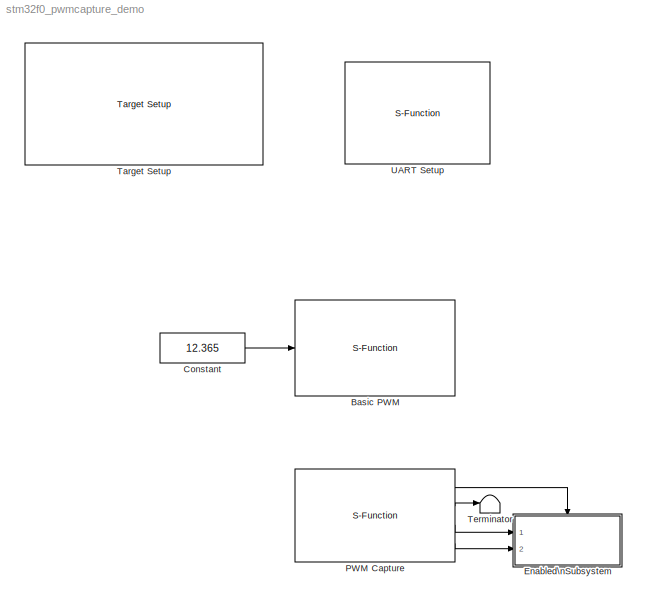
MODEL stm32f0_pwmcapture_demo
KIND model
CONFIG PreLoadFcn = waijung.modelPreload; % Required for working with Waijung Blockset. Do not remove.
BLOCK [S-Function] Basic PWM
  EnableBusSupport = off
  FunctionName = stm32f0_tim
  MaskCallbackString = stm32f0_tim_callback('conf');|stm32f0_tim_callback('timer');|||||||stm32f0_tim_callback('sampletime');|stm32f0_tim_callback('enablecustomportlabel');|stm32f0_tim_callback('conf');|stm32f0_tim_callback('conf');||stm32f0_tim_callback('blockid');||||||||
  MaskDisplay = text(0.95, 0.5, 'Timer: 16\\nPolarity: Active High\\nPeriod (sec): 0.02\\nTs (sec): 0.1','ver','middle','hor','right'); port_label('input', 1,'CH1(A6)');
  MaskEnableString = on,on,on,on,on,off,off,off,on,on,on,on,on,off,on,on,on,on,on,on,on,on
  MaskHelp = web(fullfile(waijungdocroot,'stm32f0_tim.htm'), '-browser')
  MaskIconFrame = on
  MaskIconOpaque = on
  MaskIconRotate = none
  MaskIconUnits = normalized
  MaskInitialization = stm32f0_tim_callback('init');
  MaskPortRotate = default
  MaskPromptString = Configuration|Timer|PWM Period (seconds)|Polarity|Channel 1|Channel 2|Channel 3|Channel 4|Sample time (sec)|Enable custom port labels (Ex. In1, In2, In3)|Custom input port labels (Ex. In1, In2, In3)|Custom output port labels (Ex. Out1, Out2, Out3)|Port Pin String|Block ID|Input Port Type|Input Port Width|Input Port Label|Output Port Type|Output Port Width|Output port label|Compatibility (Reserved ...<+45ch>
  MaskSelfModifiable = on
  MaskStyleString = popup(pwm),popup(1|2|3|14|15|16|17),edit,popup(Active High|Active Low),popup(Not available - Do not use|A6|B8),popup(Not available - Do not use),popup(Not available - Do not use),popup(Not available - Do not use),edit,checkbox,edit,edit,edit,edit,edit,edit,edit,edit,edit,edit,edit,edit
  MaskTabNameString = ,,,,,,,,,,,,,,,,,,,,,
  MaskToolTipString = on,on,on,on,on,on,on,on,on,on,on,on,on,on,on,on,on,on,on,on,on,on
  MaskTunableValueString = off,off,off,on,off,off,off,off,off,off,off,off,off,off,off,off,off,off,off,off,off,off
  MaskType = stm32f0_tim
  MaskValueString = pwm|16|0.02|Active High|A6|Not available - Do not use|Not available - Do not use|Not available - Do not use|inf|off|Motor1,Motor2||0|BasicPWM|[-1]|[]|{'CH1(A6)'}|[]|[]|{}|0|[\"16\",\"2\",\"0.02\",\"Active High\",\"1\",\"0\",\"0\",\"0\",\"A\",\"\",\"\",\"\",\"6\",\"\",\"\",\"\",\"5\",\"0\",\"0\",\"0\",\"1\",\"0\",\"0\",\"0\",\"0\",\"63999\",\"14\",\"TIM_OCPolarity_High\"]
  MaskVarAliasString = ,,,,,,,,,,,,,,,,,,,,,
  MaskVariables = conf=&1;timer=&2;period=&3;polarity=@4;ch1pin=&5;ch2pin=&6;ch3pin=&7;ch4pin=&8;sampletime=@9;enablecustomportlabel=@10;cinputportlabel=&11;coutputportlabel=&12;portpinstr=&13;blockid=&14;inputporttype=@15;inputportwidth=@16;inputportlabel=&17;outputporttype=@18;outputportwidth=@19;outputportlabel=&20;compat=&21;optionstring=&22;
  MaskVisibilityString = off,on,on,on,on,on,on,on,on,on,off,off,off,off,off,off,off,off,off,off,off,off
  Parameters = conf,inputporttype,inputportwidth,outputporttype,outputportwidth,optionstring,sampletime,blockid
  Ports = [1]
BLOCK [Constant] Constant
  OutDataType = fixdt(1, 16)
  OutScaling = 2^0
  Value = 12.365
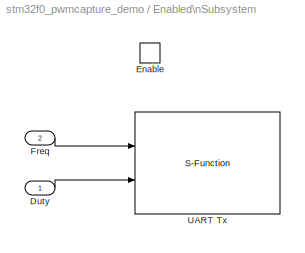
BLOCK [SubSystem] Enabled\nSubsystem
  FunctionWithSeparateData = off
  MaskHideContents = off
  MinAlgLoopOccurrences = off
  Opaque = off
  Ports = [2, 0, 1]
  PropExecContextOutsideSubsystem = off
  RTWSystemCode = Auto
  RequestExecContextInheritance = off
  TreatAsAtomicUnit = on
BLOCK [Inport] Enabled\nSubsystem/Duty
  IconDisplay = Port number
  OutDataType = fixdt(1, 16)
  OutScaling = 2^0
BLOCK [EnablePort] Enabled\nSubsystem/Enable
  Ports = []
BLOCK [Inport] Enabled\nSubsystem/Freq
  IconDisplay = Port number
  OutDataType = fixdt(1, 16)
  OutScaling = 2^0
  Port = 2
BLOCK [S-Function] Enabled\nSubsystem/UART Tx
  EnableBusSupport = off
  FunctionName = stm32f0_uart
  MaskCallbackString = stm32f0_uart_callback('conf');|stm32f0_uart_callback('uartmodule');|||||||stm32f0_uart_callback('flowcontrol');|||stm32f0_uart_callback('advanceoptions');|||stm32f0_uart_callback('conf');|stm32f0_uart_callback('conf');|stm32f0_uart_callback('binheader');|stm32f0_uart_callback('binterminator');|||||||||stm32f0_uart_callback('asciiformat');|||stm32f0_uart_callback('storagename');|||stm32f0_uart_call...<+176ch>
  MaskDescription = UART Module\n - Select module corresponding to \"UART Setup\" block.\nTransfer\n - Blocking: after write DMA buffer, the block wait until buffer empty.\n - Non-Blocking: the block will not wait for buffer empty.\nPacket mode:\n - Ascii: sending data is ascii, Ascii format + End of packet.\n - Binary: sending data is binary format, Header + Data + Terminator\n - String Buffer: Volatile Data Storage...<+256ch>
  MaskDisplay = text(0.95, 0.5, 'Module: USART1_Tx\\nPacket: Ascii\\nTransfer: Non-Blocking\\nTs (sec): 0.1','ver','middle','hor','right'); port_label('input', 1,'Freq'); port_label('input', 2,' duty');
  MaskEnableString = on,on,on,on,on,on,on,on,on,off,off,on,on,on,on,on,on,on,on,on,on,on,on,on,on,on,on,on,on,on,on,on,on,on,on,on,on,off,on,on,on,on,on,on,on,on,on,on,on,on
  MaskHelp = web(fullfile(waijungdocroot,'stm32f0_uart.htm'), '-browser')
  MaskIconFrame = on
  MaskIconOpaque = on
  MaskIconRotate = none
  MaskIconUnits = normalized
  MaskInitialization = stm32f0_uart_callback('init');
  MaskPortRotate = default
  MaskPromptString = Configuration|UART Module|Baud rate (bps)|Data bits|Parity|Stop bit|Tx pin|Rx pin|Hardware flow control|HW Flow control, CTS Pin|HW Flow control, RTS Pin|Advance options|Rx buffer size (bytes)|Tx buffer size (bytes)|Transfer|Packet mode|Binary header (example: '7E 7E')|Binary terminator (example: '03 03')|Number of data port, type DOUBLE|Number of data port, type SINGLE|Number of data port, type I...<+631ch>
  MaskSelfModifiable = on
  MaskStyleString = popup(Setup|Tx|Rx),popup(1|2|3|4),edit,popup(8),popup(No|Odd|Even),popup(0.5|1|1.5|2),popup(Not used|A9|B6),popup(Not used|A10|B7),popup(None|RTS|CTS|RTS/CTS),popup(Not used|A11),popup(Not used|A12),checkbox,popup(16|32|64|128|256|512),popup(16|32|64|128|256|512),popup(Blocking|Non-Blocking),popup(Ascii|Binary|String Buffer),edit,edit,edit,edit,edit,edit,edit,edit,edit,edit,edit,popup(CR (0x0D - \...<+259ch>
  MaskTabNameString = ,,,,,,,,,,,,,,,,,,,,,,,,,,,,,,,,,,,,,,,,,,,,,,,,,
  MaskToolTipString = on,on,on,on,on,on,on,on,on,on,on,on,on,on,on,on,on,on,on,on,on,on,on,on,on,on,on,on,on,on,on,on,on,on,on,on,on,on,on,on,on,on,on,on,on,on,on,on,on,on
  MaskTunableValueString = off,off,off,off,off,off,off,off,off,off,off,off,off,off,off,off,off,off,off,off,off,off,off,off,off,off,off,off,off,off,off,off,off,off,off,off,off,off,off,off,off,off,off,off,off,off,off,off,off,off
  MaskType = stm32f0_uart
  MaskValueString = Tx|1|115200|8|No|1|A9|A10|None|Not used|Not used|off|64|64|Non-Blocking|Ascii|'7E 7E'|'03 03'|0|0|0|0|0|0|0|2|'Freq=%1.3f, Duty=%1.3f'|CR (0x0D - \"\\r\")|LF (0x0A - \"\\n\")|<empty>||Freq=%1.3f, Duty=%1.3f\\n|inf|on|Freq, duty|fff,ff,sdfsd|0|EnabledSubsystemUARTTx|[ -1 -1]|[]|{ 'Freq' ' duty'}|[]|[]|{}|0|[\"1\", \"1\", \"A\", \"9\", \"1\", \"A\", \"10\", \"0\", \"*\", \"*\", \"0\", \"*\", \"*\", ...<+170ch>
  MaskVarAliasString = ,,,,,,,,,,,,,,,,,,,,,,,,,,,,,,,,,,,,,,,,,,,,,,,,,
  MaskVariables = conf=&1;uartmodule=&2;baudrate=@3;databits=@4;parity=&5;stopbit=&6;remaptxpin=&7;remaprxpin=&8;flowcontrol=&9;remapctspin=&10;remaprtspin=&11;advanceoptions=@12;rxbuffersize=@13;txbuffersize=@14;transfer=&15;packetmode=&16;binheader=&17;binterminator=&18;porttype_double=@19;porttype_single=@20;porttype_int8=@21;porttype_uint8=@22;porttype_int16=@23;porttype_uint16=@24;porttype_int32=@25;porttype_u...<+445ch>
  MaskVisibilityString = off,on,off,off,off,off,off,off,off,off,off,off,off,off,on,on,off,off,off,off,off,off,off,off,off,off,on,off,on,off,off,off,on,on,on,off,off,off,off,off,off,off,off,off,off,off,off,off,off,off
  Parameters = conf,inputporttype,inputportwidth,outputporttype,outputportwidth,asciiheader,optionstring,headerstring,terminatorstring,asciidatatypestring,sampletime,blockid
  Ports = [2]
BLOCK [S-Function] PWM Capture
  EnableBusSupport = off
  FunctionName = stm32f0_pwm_capture
  MaskCallbackString = stm32f0_pwm_capture_callback('conf');|stm32f0_pwm_capture_callback('timer');|||||||stm32f0_pwm_capture_callback('sampletime');|stm32f0_pwm_capture_callback('blockid');||||||||
  MaskDescription = Capture Edge:\n Rising - PWM period start from rising edge of pulse N to rising edge of pulse N+1\n Falling - PWM period start from falling edge of pulse N to falling edge of pulse N+1\nCapture data type:\n Capture data type, selectable to double or single.\n\nOutput:\n READY - indicate the status of capture, a non-zero value indicate data is ready.\n +Width - positive pulse width, in unit of seco...<+175ch>
  MaskDisplay = text(0.05, 0.5, 'Timer: 1 (16 bit)\\nInput Pin: A8\\nEdge: Rising\\nTs (sec): 0.1','ver','middle','hor','left'); port_label('output', 1,'READY'); port_label('output', 2,'+Width (sec)'); port_label('output', 3,'+Duty (%)'); port_label('output', 4,'Frequency (Hz)');
  MaskEnableString = on,on,off,on,on,on,on,on,on,off,on,on,on,on,on,on,on,on
  MaskHelp = web(fullfile(waijungdocroot,'stm32f0_pwm_capture.htm'), '-browser')
  MaskIconFrame = on
  MaskIconOpaque = on
  MaskIconRotate = none
  MaskIconUnits = normalized
  MaskInitialization = stm32f0_pwm_capture_callback('init');
  MaskPortRotate = default
  MaskPromptString = Configuration|Timer|Last Timer|Capture Pin|Capture Pin Type (Pull-Up/Pull-Down)|Capture Edge|Output data type|Port Pin String|Sample time (sec)|Block ID|Input Port Type|Input Port Width|Input Port Label|Output Port Type|Output Port Width|Output port label|Compatibility (Reserved for future use)|String(s) to be passed to TLC
  MaskSelfModifiable = on
  MaskStyleString = popup(Capture),popup(1|2|3),edit,popup(Not used|A8|A9),popup(None|Pull Up|Pull Down),popup(Rising|Falling),popup(double|single),edit,edit,edit,edit,edit,edit,edit,edit,edit,edit,edit
  MaskTabNameString = ,,,,,,,,,,,,,,,,,
  MaskToolTipString = on,on,on,on,on,on,on,on,on,on,on,on,on,on,on,on,on,on
  MaskTunableValueString = off,off,off,off,off,off,off,off,off,off,off,off,off,off,off,off,off,off
  MaskType = stm32f0_pwm_capture
  MaskValueString = Capture|1|1|A8|Pull Up|Rising|single|0|inf|PWMCapture|[]|[]|{}|[3 1 1 1]|[]|{'READY','+Width (sec)','+Duty (%)','Frequency (Hz)'}|0|[\"1\",\"2\",\"A\",\"8\",\"1\",\"16\",\"Rising\",\"UP\",\"float\",\"2\"]
  MaskVarAliasString = ,,,,,,,,,,,,,,,,,
  MaskVariables = conf=&1;timer=&2;lasttimer=&3;pin=&4;pintype=&5;edge=&6;datatype=&7;portpinstr=&8;sampletime=@9;blockid=&10;inputporttype=@11;inputportwidth=@12;inputportlabel=&13;outputporttype=@14;outputportwidth=@15;outputportlabel=&16;compat=&17;optionstring=&18;
  MaskVisibilityString = off,on,off,on,on,on,on,off,on,off,off,off,off,off,off,off,off,off
  Parameters = conf,inputporttype,inputportwidth,outputporttype,outputportwidth,optionstring,sampletime,blockid
  Ports = [0, 4]
BLOCK [Reference] Target Setup  REF=stm32f0_device_config_lib/Target Setup
  Ports = []
  Priority = 100
  SourceBlock = stm32f0_device_config_lib/Target Setup
  SourceType = stm32f0_target_setup
  assemblercontrolstr = $(patsubst %, -I%, .) -mcpu=cortex-m0 -mtune=cortex-m0 -mthumb -Wall -O3 -Wa,-amhls=$(<:.s=.lst) -D__STACK_SIZE=$(STACK_SIZE) -D__HEAP_SIZE=$(HEAP_SIZE)
  blockid = TargetSetup
  clockconfig = FiO MOTE-ST Default (HSEOSC-8MHz/HCLK-48MHz)
  compiler = GNU ARM
  compilercontrolstr = $(patsubst %, -I%, .) -mcpu=cortex-m0 -mthumb -mabi=aapcs -Wall -O3 -mfloat-abi=soft -ffunction-sections -fdata-sections -fno-strict-aliasing -fno-builtin --short-enums
  editctrlstr = on
  enableautocompiledownload = on
  execprofile = None
  flashlength = 128k
  flashorigin = 0x8000000
  fullchiperase = off
  hclk = 48000000
  heapsize = 0x200
  hseval = 8000000
  lastprofileruart = 3
  linkercontrolstr = -T$(LD_SCRIPT) -Wl,-Map=$(MAP),--cref,--no-warn-mismatch -mcpu=cortex-m0 -mthumb  -Wall -O3 -mabi=aapcs -lc -specs=nosys.specs
  manualsetsampletime = off
  mcu = STM32F072CB (LQFP48)
  mcustr = STM32F072CB
  previous_compiler = GNU ARM
  profilerbaud = 500000
  profilerinitstr = 0.1,48000000,4800000,500000,0
  profilertxpin = Not used
  profileruart = 3
  programmerinterface = aMG USB Connect
  ramlength = 16k
  ramorigin = 0x20000000
  runafterdownload = on
  sampletime = 0.1
  showmemoryconfiguration = on
  stacksize = 0x800
  stdlib = STM32F072
  system_stm32f0xx_c_path = <path>
  systickreloadvalue = 4800000
  useextram = off
BLOCK [Terminator] Terminator
BLOCK [S-Function] UART Setup
  EnableBusSupport = off
  FunctionName = stm32f0_uart
  MaskCallbackString = stm32f0_uart_callback('conf');|stm32f0_uart_callback('uartmodule');|||||||stm32f0_uart_callback('flowcontrol');|||stm32f0_uart_callback('advanceoptions');|||stm32f0_uart_callback('conf');|stm32f0_uart_callback('conf');|stm32f0_uart_callback('binheader');|stm32f0_uart_callback('binterminator');|||||||||stm32f0_uart_callback('asciiformat');|||stm32f0_uart_callback('storagename');|||stm32f0_uart_call...<+176ch>
  MaskDescription = Default configuration for aMG USB Connect board:\n - UART module: 1\n - Tx pin: A9\n - Rx pin: A10\n\nAdvance options\n - Rx buffer size (bytes): max packet length can be received via DMA.\n - Tx buffer size (bytes): max packet length can be transmit via DMA.
  MaskDisplay = text(0.5, 0.5, 'Module: USART1_Setup\\nBaud (Bps): 115200\\nDMA Buffer: 64/64\\nTx/Rx Pin: A9/A10','ver','middle','hor','center');
  MaskEnableString = on,on,on,on,on,on,on,on,on,off,off,on,on,on,on,on,on,on,on,on,on,on,on,on,on,on,on,on,on,on,on,on,on,on,on,on,on,off,on,on,on,on,on,on,on,on,on,on,on,on
  MaskHelp = web(fullfile(waijungdocroot,'stm32f0_uart.htm'), '-browser')
  MaskIconFrame = on
  MaskIconOpaque = on
  MaskIconRotate = none
  MaskIconUnits = normalized
  MaskInitialization = stm32f0_uart_callback('init');
  MaskPortRotate = default
  MaskPromptString = Configuration|UART Module|Baud rate (bps)|Data bits|Parity|Stop bit|Tx pin|Rx pin|Hardware flow control|HW Flow control, CTS Pin|HW Flow control, RTS Pin|Advance options|Rx buffer size (bytes)|Tx buffer size (bytes)|Transfer|Packet mode|Binary header (example: '7E 7E')|Binary terminator (example: '03 03')|Number of data port, type DOUBLE|Number of data port, type SINGLE|Number of data port, type I...<+631ch>
  MaskSelfModifiable = on
  MaskStyleString = popup(Setup|Tx|Rx),popup(1|2|3|4),edit,popup(8),popup(No|Odd|Even),popup(0.5|1|1.5|2),popup(Not used|A9|B6),popup(Not used|A10|B7),popup(None|RTS|CTS|RTS/CTS),popup(Not used|A11),popup(Not used|A12),checkbox,popup(16|32|64|128|256|512),popup(16|32|64|128|256|512),popup(Blocking|Non-Blocking),popup(Ascii|Binary|String Buffer),edit,edit,edit,edit,edit,edit,edit,edit,edit,edit,edit,popup(CR (0x0D - \...<+259ch>
  MaskTabNameString = ,,,,,,,,,,,,,,,,,,,,,,,,,,,,,,,,,,,,,,,,,,,,,,,,,
  MaskToolTipString = on,on,on,on,on,on,on,on,on,on,on,on,on,on,on,on,on,on,on,on,on,on,on,on,on,on,on,on,on,on,on,on,on,on,on,on,on,on,on,on,on,on,on,on,on,on,on,on,on,on
  MaskTunableValueString = off,off,off,off,off,off,off,off,off,off,off,off,off,off,off,off,off,off,off,off,off,off,off,off,off,off,off,off,off,off,off,off,off,off,off,off,off,off,off,off,off,off,off,off,off,off,off,off,off,off
  MaskType = stm32f0_uart
  MaskValueString = Setup|1|115200|8|No|1|A9|A10|None|Not used|Not used|off|64|64|Non-Blocking|Binary|'7E 7E'|'03 03'|1|1|0|0|0|1|0|0|'%1.2f'|CR (0x0D - \"\\r\")|CR (0x0D - \"\\r\")|<empty>|||-1|off|de|fff,ff,sdfsd|0|UARTSetup|[]|[]|{}|[]|[]|{}|0|[\"1\", \"1\", \"A\", \"9\", \"1\", \"A\", \"10\", \"0\", \"*\", \"*\", \"0\", \"*\", \"*\", \"1\", \"1\", \"\", \"\", \"115200\", \"8\", \"No\", \"1\", \"None\", \"3\", \"2...<+66ch>
  MaskVarAliasString = ,,,,,,,,,,,,,,,,,,,,,,,,,,,,,,,,,,,,,,,,,,,,,,,,,
  MaskVariables = conf=&1;uartmodule=&2;baudrate=@3;databits=@4;parity=&5;stopbit=&6;remaptxpin=&7;remaprxpin=&8;flowcontrol=&9;remapctspin=&10;remaprtspin=&11;advanceoptions=@12;rxbuffersize=@13;txbuffersize=@14;transfer=&15;packetmode=&16;binheader=&17;binterminator=&18;porttype_double=@19;porttype_single=@20;porttype_int8=@21;porttype_uint8=@22;porttype_int16=@23;porttype_uint16=@24;porttype_int32=@25;porttype_u...<+445ch>
  MaskVisibilityString = off,on,on,on,on,on,on,on,on,on,on,on,off,off,off,off,off,off,off,off,off,off,off,off,off,off,off,off,off,off,off,off,off,off,off,off,off,off,off,off,off,off,off,off,off,off,off,off,off,off
  Parameters = conf,inputporttype,inputportwidth,outputporttype,outputportwidth,asciiheader,optionstring,headerstring,terminatorstring,asciidatatypestring,sampletime,blockid
  Ports = []
LINE Constant:1 -> Basic PWM:1
LINE Enabled\nSubsystem/Duty:1 -> Enabled\nSubsystem/UART Tx:2
LINE Enabled\nSubsystem/Freq:1 -> Enabled\nSubsystem/UART Tx:1
LINE PWM Capture:1 -> Enabled\nSubsystem:enable
LINE PWM Capture:2 -> Terminator:1
LINE PWM Capture:3 -> Enabled\nSubsystem:1
LINE PWM Capture:4 -> Enabled\nSubsystem:2
note: 1 file-system path scrubbed to <path> (not preserved elsewhere — flat text is the only slx artifact)
